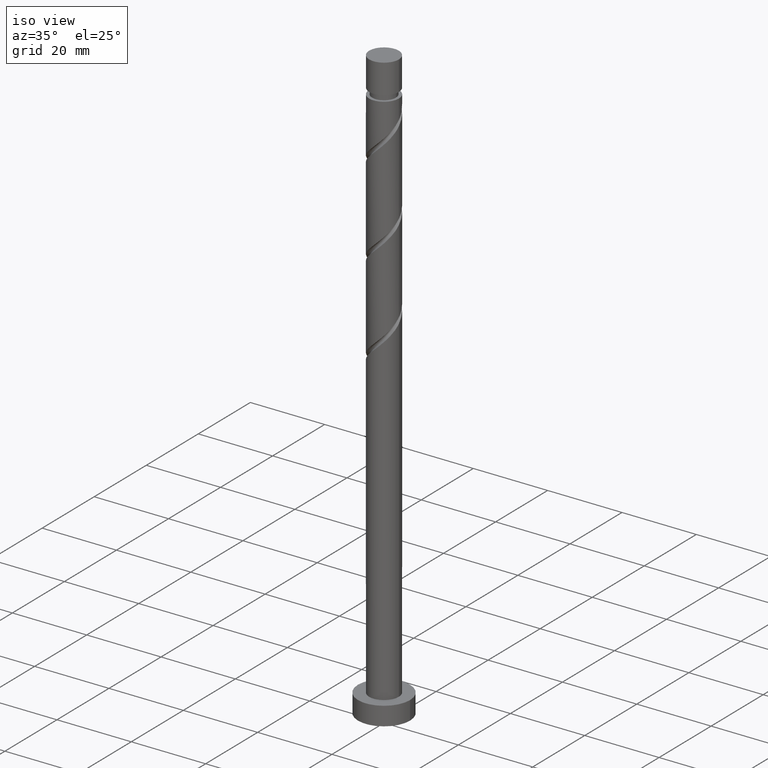
[diagram: clean part render]
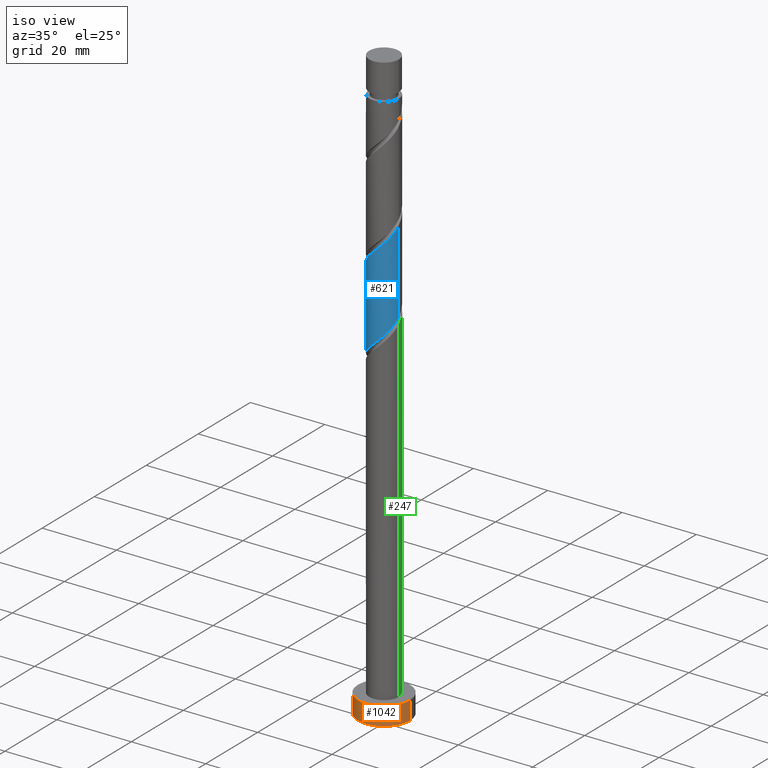
[diagram: same view with three faces highlighted in distinct colors, each labeled with its STEP entity id]
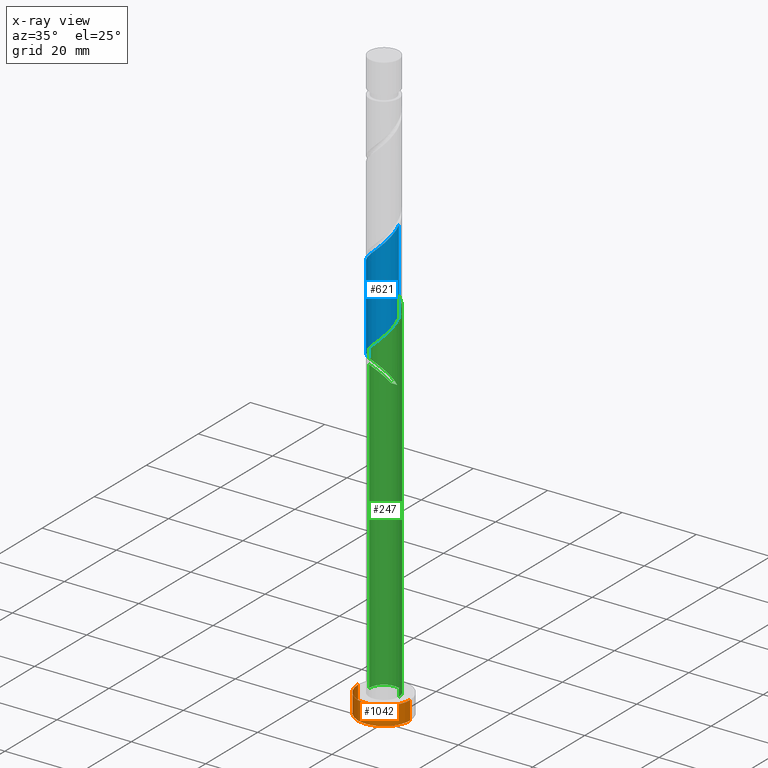
[diagram: x-ray of the same camera — body ghosted, the three highlighted faces saturated]
A machine part, iso view with three faces highlighted in distinct colors.
The next image is the same camera in x-ray (body ghosted, the three faces saturated) — at least one of them is partly hidden behind the body in this view.
Their STEP definitions:

[orange] entity #1042 — the highlighted cylindrical surface (edge-blend (fillet) strip) has radius 7 mm, axis along (-0, -0, -1).
#5 = CARTESIAN_POINT ( 'NONE',  ( -7.000000000000000000, 0.000000000000000000, 5.000000000000000000 ) ) ;
#41 = VERTEX_POINT ( 'NONE', #131 ) ;
#100 = ORIENTED_EDGE ( 'NONE', *, *, #374, .F. ) ;
#131 = CARTESIAN_POINT ( 'NONE',  ( 7.000000000000000000, 8.572527594031473190E-16, 5.000000000000000000 ) ) ;
#141 = DIRECTION ( 'NONE',  ( -0.000000000000000000, -0.000000000000000000, -1.000000000000000000 ) ) ;
#251 = DIRECTION ( 'NONE',  ( -0.000000000000000000, -0.000000000000000000, -1.000000000000000000 ) ) ;
#346 = CIRCLE ( 'NONE', #793, 7.000000000000000000 ) ;
#358 = ORIENTED_EDGE ( 'NONE', *, *, #1585, .F. ) ;
#374 = EDGE_CURVE ( 'NONE', #1170, #41, #1070, .T. ) ;
#381 = DIRECTION ( 'NONE',  ( -1.000000000000000000, 0.000000000000000000, 0.000000000000000000 ) ) ;
#391 = DIRECTION ( 'NONE',  ( 0.000000000000000000, 0.000000000000000000, 1.000000000000000000 ) ) ;
#403 = DIRECTION ( 'NONE',  ( -0.000000000000000000, -0.000000000000000000, -1.000000000000000000 ) ) ;
#452 = CARTESIAN_POINT ( 'NONE',  ( 7.000000000000000000, 8.572527594031473190E-16, 0.000000000000000000 ) ) ;
#472 = EDGE_CURVE ( 'NONE', #563, #623, #346, .T. ) ;
#500 = DIRECTION ( 'NONE',  ( 0.000000000000000000, 0.000000000000000000, 1.000000000000000000 ) ) ;
#546 = VECTOR ( 'NONE', #403, 1000.000000000000000 ) ;
#552 = EDGE_CURVE ( 'NONE', #1170, #563, #670, .T. ) ;
#563 = VERTEX_POINT ( 'NONE', #913 ) ;
#623 = VERTEX_POINT ( 'NONE', #452 ) ;
#670 = LINE ( 'NONE', #5, #1542 ) ;
#733 = AXIS2_PLACEMENT_3D ( 'NONE', #1552, #500, #1026 ) ;
#793 = AXIS2_PLACEMENT_3D ( 'NONE', #1296, #391, #920 ) ;
#842 = ORIENTED_EDGE ( 'NONE', *, *, #472, .T. ) ;
#896 = FACE_OUTER_BOUND ( 'NONE', #1307, .T. ) ;
#913 = CARTESIAN_POINT ( 'NONE',  ( -7.000000000000000000, 0.000000000000000000, 0.000000000000000000 ) ) ;
#920 = DIRECTION ( 'NONE',  ( 1.000000000000000000, 0.000000000000000000, 0.000000000000000000 ) ) ;
#959 = AXIS2_PLACEMENT_3D ( 'NONE', #1169, #251, #381 ) ;
#1026 = DIRECTION ( 'NONE',  ( 1.000000000000000000, 0.000000000000000000, 0.000000000000000000 ) ) ;
#1042 = ADVANCED_FACE ( 'NONE', ( #896 ), #1043, .T. ) ;
#1043 = CYLINDRICAL_SURFACE ( 'NONE', #959, 7.000000000000000000 ) ;
#1070 = CIRCLE ( 'NONE', #733, 7.000000000000000000 ) ;
#1169 = CARTESIAN_POINT ( 'NONE',  ( 0.000000000000000000, 0.000000000000000000, 5.000000000000000000 ) ) ;
#1170 = VERTEX_POINT ( 'NONE', #1533 ) ;
#1189 = CARTESIAN_POINT ( 'NONE',  ( 7.000000000000000000, 8.572527594031473190E-16, 5.000000000000000000 ) ) ;
#1220 = ORIENTED_EDGE ( 'NONE', *, *, #552, .T. ) ;
#1296 = CARTESIAN_POINT ( 'NONE',  ( 0.000000000000000000, 0.000000000000000000, 0.000000000000000000 ) ) ;
#1307 = EDGE_LOOP ( 'NONE', ( #358, #100, #1220, #842 ) ) ;
#1318 = LINE ( 'NONE', #1189, #546 ) ;
#1533 = CARTESIAN_POINT ( 'NONE',  ( -7.000000000000000000, 0.000000000000000000, 5.000000000000000000 ) ) ;
#1542 = VECTOR ( 'NONE', #141, 1000.000000000000000 ) ;
#1552 = CARTESIAN_POINT ( 'NONE',  ( 0.000000000000000000, 0.000000000000000000, 5.000000000000000000 ) ) ;
#1585 = EDGE_CURVE ( 'NONE', #41, #623, #1318, .T. ) ;

[blue] entity #621 — the highlighted cylindrical surface (edge-blend (fillet) strip) has radius 4 mm, axis along (-0, -0, -1).
#7 = CARTESIAN_POINT ( 'NONE',  ( -0.7959899496852971268, -3.919999999999999929, 90.49036384294289803 ) ) ;
#27 = CARTESIAN_POINT ( 'NONE',  ( -4.000000000000000000, 0.000000000000000000, 160.0000000000000000 ) ) ;
#60 = CARTESIAN_POINT ( 'NONE',  ( 4.000000000000005329, 2.557616340297881178E-15, 119.7258548115721339 ) ) ;
#82 = ORIENTED_EDGE ( 'NONE', *, *, #1619, .F. ) ;
#103 = CARTESIAN_POINT ( 'NONE',  ( 3.766394975944548751, -1.464590062224029987, 118.3085456611247395 ) ) ;
#112 = CARTESIAN_POINT ( 'NONE',  ( 1.868138386609204726, -3.536956172823916056, 115.5812729338520057 ) ) ;
#115 = VECTOR ( 'NONE', #168, 1000.000000000000000 ) ;
#121 = CARTESIAN_POINT ( 'NONE',  ( 1.985696539029934149, -3.519625607940456202, 93.21763657021566019 ) ) ;
#129 = CARTESIAN_POINT ( 'NONE',  ( 4.000000000000005329, 2.557616340297881178E-15, 119.7258548115721339 ) ) ;
#168 = DIRECTION ( 'NONE',  ( -0.000000000000000000, -0.000000000000000000, -1.000000000000000000 ) ) ;
#170 = CARTESIAN_POINT ( 'NONE',  ( 0.000000000000000000, 0.000000000000000000, 160.0000000000000000 ) ) ;
#171 = VERTEX_POINT ( 'NONE', #60 ) ;
#177 = CARTESIAN_POINT ( 'NONE',  ( -2.441275768804712420, -3.168623142730450759, 111.2176365702156460 ) ) ;
#250 = CARTESIAN_POINT ( 'NONE',  ( 3.483800894132681236, -1.965485011400590842, 117.7630911156701927 ) ) ;
#279 = LINE ( 'NONE', #27, #115 ) ;
#303 = CARTESIAN_POINT ( 'NONE',  ( -3.235091246491827999, -2.352484777181776288, 110.1267274793065667 ) ) ;
#316 = AXIS2_PLACEMENT_3D ( 'NONE', #170, #569, #582 ) ;
#355 = CARTESIAN_POINT ( 'NONE',  ( 4.000000000000000888, -4.606700776676913527E-15, 97.25487287431371897 ) ) ;
#376 = VERTEX_POINT ( 'NONE', #1525 ) ;
#380 = CARTESIAN_POINT ( 'NONE',  ( -3.201206812320810169, -2.466379960577145702, 87.76309111567022114 ) ) ;
#386 = CARTESIAN_POINT ( 'NONE',  ( 0.9136687552802118528, -3.936491403624601926, 92.12672747930659511 ) ) ;
#442 = VERTEX_POINT ( 'NONE', #355 ) ;
#450 = CARTESIAN_POINT ( 'NONE',  ( -0.9136687552802127410, -3.936491403624608143, 112.8540002065792862 ) ) ;
#488 = CARTESIAN_POINT ( 'NONE',  ( 3.235091246491824002, -2.352484777181773179, 94.85400020657930042 ) ) ;
#495 = CARTESIAN_POINT ( 'NONE',  ( 3.993381233129879693, -0.2300137536889547418, 97.03581838839744478 ) ) ;
#506 = CARTESIAN_POINT ( 'NONE',  ( 3.766818871216632836, -1.345762085751509129, 95.94490929748837971 ) ) ;
#519 = CARTESIAN_POINT ( 'NONE',  ( -2.788941361696812393, -2.867369191613931001, 88.30854566112473947 ) ) ;
#567 = CARTESIAN_POINT ( 'NONE',  ( -4.000000000000005329, -2.752055009443334096E-15, 107.7258548115721197 ) ) ;
#569 = DIRECTION ( 'NONE',  ( -0.000000000000000000, -0.000000000000000000, -1.000000000000000000 ) ) ;
#582 = DIRECTION ( 'NONE',  ( -1.000000000000000000, 0.000000000000000000, 0.000000000000000000 ) ) ;
#617 = CARTESIAN_POINT ( 'NONE',  ( 3.960310248029102365, -0.8041752946599112217, 96.49036384294294066 ) ) ;
#621 = ADVANCED_FACE ( 'NONE', ( #1090 ), #960, .T. ) ;
#626 = CARTESIAN_POINT ( 'NONE',  ( -4.000000000000001776, -0.4581157095404894686, 85.69223683198789843 ) ) ;
#637 = CARTESIAN_POINT ( 'NONE',  ( -4.000000000000000888, 3.769118817281110637E-15, 85.25487287431370476 ) ) ;
#641 = CARTESIAN_POINT ( 'NONE',  ( 1.449682647155072557, -3.728058505782528620, 92.67218202476111344 ) ) ;
#761 = CARTESIAN_POINT ( 'NONE',  ( -3.483800894132676351, -1.965485011400587068, 87.21763657021564597 ) ) ;
#779 = CARTESIAN_POINT ( 'NONE',  ( -1.359600862145591949, -3.805553922997103822, 89.94490929748835129 ) ) ;
#785 = CARTESIAN_POINT ( 'NONE',  ( 4.000000000000000000, 4.898587196589412829E-16, 160.0000000000000000 ) ) ;
#905 = CARTESIAN_POINT ( 'NONE',  ( 3.896423597087605994, -0.9043689247530174447, 118.8540002065793146 ) ) ;
#915 = CARTESIAN_POINT ( 'NONE',  ( 1.359600862145592615, -3.805553922997109595, 115.0358183883974874 ) ) ;
#919 =( BOUNDED_CURVE ( )  B_SPLINE_CURVE ( 2, ( #1642, #1510, #495, #617, #506, #1652, #488, #1520, #1414, #121, #641, #386, #1423, #1175, #7, #779, #1398, #1538, #519, #380, #761, #1030, #1047, #626, #1167 ),
 .UNSPECIFIED., .F., .T. ) 
 B_SPLINE_CURVE_WITH_KNOTS ( ( 3, 2, 2, 2, 2, 2, 2, 2, 2, 2, 2, 2, 3 ),
 ( 0.8045252162417513286, 0.8068181818181817677, 0.8181818181818182323, 0.8295454545454545858, 0.8409090909090909394, 0.8522727272727272929, 0.8636363636363636465, 0.8750000000000000000, 0.8863636363636363535, 0.8977272727272727071, 0.9090909090909090606, 0.9204545454545454142, 0.9295252162417513286 ),
 .UNSPECIFIED. ) 
 CURVE ( )  GEOMETRIC_REPRESENTATION_ITEM ( )  RATIONAL_B_SPLINE_CURVE ( ( 0.9061101570135567940, 0.9072237824201390133, 0.9090909090909164991, 0.8998376744372188485, 0.9090909090909164991, 0.8998376744372188485, 0.9090909090909164991, 0.8998376744372188485, 0.9090909090909164991, 0.8998376744372188485, 0.9090909090909164991, 0.8998376744372188485, 0.9090909090909164991, 0.8998376744372188485, 0.9090909090909164991, 0.8998376744372188485, 0.9090909090909164991, 0.8998376744372188485, 0.9090909090909164991, 0.8998376744372188485, 0.9090909090909164991, 0.8998376744372188485, 0.9090909090909164991, 0.9017048011079962233, 0.9061101570135567940 ) ) 
 REPRESENTATION_ITEM ( '' )  );
#930 = DIRECTION ( 'NONE',  ( -0.000000000000000000, -0.000000000000000000, -1.000000000000000000 ) ) ;
#960 = CYLINDRICAL_SURFACE ( 'NONE', #316, 4.000000000000000000 ) ;
#961 = ORIENTED_EDGE ( 'NONE', *, *, #1205, .T. ) ;
#973 = CARTESIAN_POINT ( 'NONE',  ( -0.3406448590276058841, -3.985468740313755642, 113.3994547520338330 ) ) ;
#1011 = CARTESIAN_POINT ( 'NONE',  ( 3.201206812320812833, -2.466379960577149699, 117.2176365702156460 ) ) ;
#1021 = CARTESIAN_POINT ( 'NONE',  ( 2.788941361696814614, -2.867369191613936330, 116.6721820247610992 ) ) ;
#1030 = CARTESIAN_POINT ( 'NONE',  ( -3.766394975944543422, -1.464590062224028433, 86.67218202476112765 ) ) ;
#1047 = CARTESIAN_POINT ( 'NONE',  ( -3.896423597087600665, -0.9043689247530153352, 86.12672747930656669 ) ) ;
#1090 = FACE_OUTER_BOUND ( 'NONE', #1358, .T. ) ;
#1098 = CARTESIAN_POINT ( 'NONE',  ( -4.000000000000005329, -0.1151021060952966968, 107.8357430158185224 ) ) ;
#1107 = VERTEX_POINT ( 'NONE', #637 ) ;
#1147 = CARTESIAN_POINT ( 'NONE',  ( 0.7959899496852965717, -3.920000000000005702, 114.4903638429429407 ) ) ;
#1167 = CARTESIAN_POINT ( 'NONE',  ( -4.000000000000000888, 3.769118817281110637E-15, 85.25487287431370476 ) ) ;
#1175 = CARTESIAN_POINT ( 'NONE',  ( -0.2323790372250022218, -4.034446077002896480, 91.03581838839745899 ) ) ;
#1181 = ORIENTED_EDGE ( 'NONE', *, *, #1446, .F. ) ;
#1205 = EDGE_CURVE ( 'NONE', #376, #1107, #279, .T. ) ;
#1225 = CARTESIAN_POINT ( 'NONE',  ( -1.985696539029938146, -3.519625607940459311, 111.7630911156702069 ) ) ;
#1245 = CARTESIAN_POINT ( 'NONE',  ( -3.993381233129885466, -0.2300137536889534373, 107.9449092974883797 ) ) ;
#1288 = CARTESIAN_POINT ( 'NONE',  ( 4.000000000000008882, -0.4581157095404853608, 119.2884908538979971 ) ) ;
#1294 = CARTESIAN_POINT ( 'NONE',  ( 2.376675911072817282, -3.268358422650720740, 116.1267274793065667 ) ) ;
#1310 = ORIENTED_EDGE ( 'NONE', *, *, #1466, .F. ) ;
#1349 = CARTESIAN_POINT ( 'NONE',  ( -2.896854998579486917, -2.817620677520442651, 110.6721820247611134 ) ) ;
#1358 = EDGE_LOOP ( 'NONE', ( #82, #1181, #961, #1310 ) ) ;
#1398 = CARTESIAN_POINT ( 'NONE',  ( -1.868138386609203616, -3.536956172823910727, 89.39945475203383296 ) ) ;
#1414 = CARTESIAN_POINT ( 'NONE',  ( 2.441275768804707980, -3.168623142730448095, 93.76309111567019272 ) ) ;
#1423 = CARTESIAN_POINT ( 'NONE',  ( 0.3406448590276037192, -3.985468740313750313, 91.58127293385200574 ) ) ;
#1446 = EDGE_CURVE ( 'NONE', #376, #171, #1603, .T. ) ;
#1457 = LINE ( 'NONE', #785, #1645 ) ;
#1466 = EDGE_CURVE ( 'NONE', #442, #1107, #919, .T. ) ;
#1468 = CARTESIAN_POINT ( 'NONE',  ( -3.573327494404169524, -1.887348876843109702, 109.5812729338520199 ) ) ;
#1475 = CARTESIAN_POINT ( 'NONE',  ( 0.2323790372250007230, -4.034446077002900921, 113.9449092974883513 ) ) ;
#1503 = CARTESIAN_POINT ( 'NONE',  ( -3.960310248029106805, -0.8041752946599106666, 108.4903638429429122 ) ) ;
#1510 = CARTESIAN_POINT ( 'NONE',  ( 4.000000000000000888, -0.1151021060952927416, 97.14498467006733051 ) ) ;
#1520 = CARTESIAN_POINT ( 'NONE',  ( 2.896854998579484253, -2.817620677520439987, 94.30854566112473947 ) ) ;
#1525 = CARTESIAN_POINT ( 'NONE',  ( -4.000000000000005329, -2.752055009443334096E-15, 107.7258548115721197 ) ) ;
#1538 = CARTESIAN_POINT ( 'NONE',  ( -2.376675911072814618, -3.268358422650716744, 88.85400020657930042 ) ) ;
#1591 = CARTESIAN_POINT ( 'NONE',  ( -3.766818871216639053, -1.345762085751509796, 109.0358183883974732 ) ) ;
#1602 = CARTESIAN_POINT ( 'NONE',  ( -1.449682647155075665, -3.728058505782533505, 112.3085456611247537 ) ) ;
#1603 =( BOUNDED_CURVE ( )  B_SPLINE_CURVE ( 2, ( #567, #1098, #1245, #1503, #1591, #1468, #303, #1349, #177, #1225, #1602, #450, #973, #1475, #1147, #915, #112, #1294, #1021, #1011, #250, #103, #905, #1288, #129 ),
 .UNSPECIFIED., .F., .T. ) 
 B_SPLINE_CURVE_WITH_KNOTS ( ( 3, 2, 2, 2, 2, 2, 2, 2, 2, 2, 2, 2, 3 ),
 ( 0.3045252162417514397, 0.3068181818181817677, 0.3181818181818182323, 0.3295454545454545858, 0.3409090909090909394, 0.3522727272727272929, 0.3636363636363636465, 0.3750000000000000000, 0.3863636363636363535, 0.3977272727272727071, 0.4090909090909090606, 0.4204545454545454142, 0.4295252162417514397 ),
 .UNSPECIFIED. ) 
 CURVE ( )  GEOMETRIC_REPRESENTATION_ITEM ( )  RATIONAL_B_SPLINE_CURVE ( ( 0.9061101570135624561, 0.9072237824201445644, 0.9090909090909219392, 0.8998376744372241776, 0.9090909090909219392, 0.8998376744372241776, 0.9090909090909219392, 0.8998376744372241776, 0.9090909090909219392, 0.8998376744372241776, 0.9090909090909219392, 0.8998376744372241776, 0.9090909090909219392, 0.8998376744372241776, 0.9090909090909219392, 0.8998376744372241776, 0.9090909090909219392, 0.8998376744372241776, 0.9090909090909219392, 0.8998376744372241776, 0.9090909090909219392, 0.8998376744372241776, 0.9090909090909219392, 0.9017048011080015524, 0.9061101570135624561 ) ) 
 REPRESENTATION_ITEM ( '' )  );
#1619 = EDGE_CURVE ( 'NONE', #171, #442, #1457, .T. ) ;
#1642 = CARTESIAN_POINT ( 'NONE',  ( 4.000000000000000888, -4.606700776676913527E-15, 97.25487287431371897 ) ) ;
#1645 = VECTOR ( 'NONE', #930, 1000.000000000000000 ) ;
#1652 = CARTESIAN_POINT ( 'NONE',  ( 3.573327494404164639, -1.887348876843107703, 95.39945475203384717 ) ) ;

[green] entity #247 — the highlighted cylindrical surface (edge-blend (fillet) strip) has radius 4 mm, axis along (-0, -0, -1).
#4 = CARTESIAN_POINT ( 'NONE',  ( -4.000000000000005329, -2.752055009443334096E-15, 107.7258548115721197 ) ) ;
#10 = LINE ( 'NONE', #1185, #408 ) ;
#14 = CARTESIAN_POINT ( 'NONE',  ( -1.868138386609205837, 3.536956172823915612, 79.58127293385203416 ) ) ;
#21 = CARTESIAN_POINT ( 'NONE',  ( -3.483800894132681236, 1.965485011400590398, 81.76309111567019272 ) ) ;
#22 = DIRECTION ( 'NONE',  ( 0.000000000000000000, -0.000000000000000000, -1.000000000000000000 ) ) ;
#27 = CARTESIAN_POINT ( 'NONE',  ( -4.000000000000000000, 0.000000000000000000, 160.0000000000000000 ) ) ;
#31 = CARTESIAN_POINT ( 'NONE',  ( -4.000000000000005329, -2.752055009443334096E-15, 83.72585481157213394 ) ) ;
#34 = CIRCLE ( 'NONE', #244, 4.000000000000000000 ) ;
#45 = EDGE_CURVE ( 'NONE', #776, #376, #444, .T. ) ;
#84 = CARTESIAN_POINT ( 'NONE',  ( 0.000000000000000000, 0.000000000000000000, 160.0000000000000000 ) ) ;
#86 = AXIS2_PLACEMENT_3D ( 'NONE', #789, #22, #890 ) ;
#115 = VECTOR ( 'NONE', #168, 1000.000000000000000 ) ;
#128 = CARTESIAN_POINT ( 'NONE',  ( -4.000000000000008882, 0.4581157095404854718, 107.2884908538979687 ) ) ;
#150 =( BOUNDED_CURVE ( )  B_SPLINE_CURVE ( 2, ( #231, #1419, #14, #1426, #743, #539, #21, #1321, #1065, #533, #928 ),
 .UNSPECIFIED., .F., .T. ) 
 B_SPLINE_CURVE_WITH_KNOTS ( ( 3, 2, 2, 2, 2, 3 ),
 ( 0.000000000000000000, 0.01136363636363635354, 0.02272727272727270709, 0.03409090909090906063, 0.04545454545454541417, 0.05452521624175133558 ),
 .UNSPECIFIED. ) 
 CURVE ( )  GEOMETRIC_REPRESENTATION_ITEM ( )  RATIONAL_B_SPLINE_CURVE ( ( 0.9090909090909219392, 0.8998376744372241776, 0.9090909090909219392, 0.8998376744372241776, 0.9090909090909219392, 0.8998376744372241776, 0.9090909090909219392, 0.8998376744372241776, 0.9090909090909219392, 0.9017048011080016634, 0.9061101570135623451 ) ) 
 REPRESENTATION_ITEM ( '' )  );
#168 = DIRECTION ( 'NONE',  ( -0.000000000000000000, -0.000000000000000000, -1.000000000000000000 ) ) ;
#185 = CARTESIAN_POINT ( 'NONE',  ( 4.000000000000000000, 4.898587196589412829E-16, 160.0000000000000000 ) ) ;
#191 = EDGE_CURVE ( 'NONE', #1421, #975, #34, .T. ) ;
#205 = DIRECTION ( 'NONE',  ( -1.000000000000000000, 0.000000000000000000, 0.000000000000000000 ) ) ;
#231 = CARTESIAN_POINT ( 'NONE',  ( -0.7959899496852960166, 3.920000000000004370, 78.49036384294292645 ) ) ;
#240 = CARTESIAN_POINT ( 'NONE',  ( 0.3406448590276063282, 3.985468740313755642, 101.3994547520338472 ) ) ;
#244 = AXIS2_PLACEMENT_3D ( 'NONE', #1102, #855, #1368 ) ;
#247 = ADVANCED_FACE ( 'NONE', ( #1598 ), #1007, .T. ) ;
#249 = CARTESIAN_POINT ( 'NONE',  ( 1.449682647155074333, 3.728058505782534393, 100.3085456611247679 ) ) ;
#264 = CARTESIAN_POINT ( 'NONE',  ( 1.985696539029936369, 3.519625607940460643, 99.76309111567022114 ) ) ;
#279 = LINE ( 'NONE', #27, #115 ) ;
#334 = EDGE_CURVE ( 'NONE', #1107, #1100, #971, .T. ) ;
#347 = ORIENTED_EDGE ( 'NONE', *, *, #1205, .F. ) ;
#376 = VERTEX_POINT ( 'NONE', #1525 ) ;
#378 = CARTESIAN_POINT ( 'NONE',  ( -2.376675911072817282, 3.268358422650721629, 104.1267274793065525 ) ) ;
#394 = CARTESIAN_POINT ( 'NONE',  ( 3.573327494404170412, 1.887348876843108370, 97.58127293385197731 ) ) ;
#408 = VECTOR ( 'NONE', #1424, 1000.000000000000000 ) ;
#444 =( BOUNDED_CURVE ( )  B_SPLINE_CURVE ( 2, ( #1649, #1554, #892, #633, #502, #394, #1517, #921, #1396, #264, #249, #791, #240, #1164, #1660, #514, #1537, #378, #904, #1411, #778, #1173, #1292, #128, #4 ),
 .UNSPECIFIED., .F., .T. ) 
 B_SPLINE_CURVE_WITH_KNOTS ( ( 3, 2, 2, 2, 2, 2, 2, 2, 2, 2, 2, 2, 3 ),
 ( 0.1795252162417513841, 0.1818181818181817677, 0.1931818181818182323, 0.2045454545454545858, 0.2159090909090909394, 0.2272727272727272929, 0.2386363636363636465, 0.2500000000000000000, 0.2613636363636363535, 0.2727272727272727071, 0.2840909090909090606, 0.2954545454545454142, 0.3045252162417514397 ),
 .UNSPECIFIED. ) 
 CURVE ( )  GEOMETRIC_REPRESENTATION_ITEM ( )  RATIONAL_B_SPLINE_CURVE ( ( 0.9061101570135623451, 0.9072237824201445644, 0.9090909090909219392, 0.8998376744372241776, 0.9090909090909219392, 0.8998376744372241776, 0.9090909090909219392, 0.8998376744372241776, 0.9090909090909219392, 0.8998376744372241776, 0.9090909090909219392, 0.8998376744372241776, 0.9090909090909219392, 0.8998376744372241776, 0.9090909090909219392, 0.8998376744372241776, 0.9090909090909219392, 0.8998376744372241776, 0.9090909090909219392, 0.8998376744372241776, 0.9090909090909219392, 0.8998376744372241776, 0.9090909090909219392, 0.9017048011080015524, 0.9061101570135624561 ) ) 
 REPRESENTATION_ITEM ( '' )  );
#464 = CARTESIAN_POINT ( 'NONE',  ( -3.993381233129879693, 0.2300137536889541867, 85.03581838839744478 ) ) ;
#476 = CARTESIAN_POINT ( 'NONE',  ( -4.000000000000000888, 3.769118817281110637E-15, 85.25487287431370476 ) ) ;
#502 = CARTESIAN_POINT ( 'NONE',  ( 3.766818871216639053, 1.345762085751509574, 97.03581838839745899 ) ) ;
#514 = CARTESIAN_POINT ( 'NONE',  ( -1.359600862145593503, 3.805553922997108707, 103.0358183883974874 ) ) ;
#523 = EDGE_CURVE ( 'NONE', #639, #1630, #150, .T. ) ;
#533 = CARTESIAN_POINT ( 'NONE',  ( -4.000000000000007105, 0.4581157095404903012, 83.28849085389795448 ) ) ;
#539 = CARTESIAN_POINT ( 'NONE',  ( -3.201206812320813277, 2.466379960577148367, 81.21763657021567440 ) ) ;
#572 = ORIENTED_EDGE ( 'NONE', *, *, #699, .T. ) ;
#575 = CARTESIAN_POINT ( 'NONE',  ( -3.573327494404164639, 1.887348876843108147, 83.39945475203383296 ) ) ;
#586 = CARTESIAN_POINT ( 'NONE',  ( -3.235091246491823558, 2.352484777181774511, 82.85400020657928621 ) ) ;
#593 = CARTESIAN_POINT ( 'NONE',  ( -4.000000000000000888, 0.1151021060952919922, 85.14498467006733051 ) ) ;
#615 = ORIENTED_EDGE ( 'NONE', *, *, #1057, .F. ) ;
#619 = CARTESIAN_POINT ( 'NONE',  ( -4.000000000000000000, 0.000000000000000000, 5.000000000000000000 ) ) ;
#633 = CARTESIAN_POINT ( 'NONE',  ( 3.960310248029106805, 0.8041752946599101115, 96.49036384294291224 ) ) ;
#637 = CARTESIAN_POINT ( 'NONE',  ( -4.000000000000000888, 3.769118817281110637E-15, 85.25487287431370476 ) ) ;
#639 = VERTEX_POINT ( 'NONE', #1595 ) ;
#692 = ORIENTED_EDGE ( 'NONE', *, *, #852, .T. ) ;
#699 = EDGE_CURVE ( 'NONE', #639, #1100, #700, .T. ) ;
#700 = CIRCLE ( 'NONE', #86, 4.000000000000000000 ) ;
#705 = CARTESIAN_POINT ( 'NONE',  ( -1.985696539029934815, 3.519625607940455758, 81.21763657021564597 ) ) ;
#706 = DIRECTION ( 'NONE',  ( -0.000000000000000000, -0.000000000000000000, -1.000000000000000000 ) ) ;
#714 = CARTESIAN_POINT ( 'NONE',  ( 0.7959899496852974599, 3.919999999999999929, 78.49036384294292645 ) ) ;
#743 = CARTESIAN_POINT ( 'NONE',  ( -2.788941361696814614, 2.867369191613936330, 80.67218202476112765 ) ) ;
#776 = VERTEX_POINT ( 'NONE', #782 ) ;
#778 = CARTESIAN_POINT ( 'NONE',  ( -3.483800894132681236, 1.965485011400590398, 105.7630911156701927 ) ) ;
#782 = CARTESIAN_POINT ( 'NONE',  ( 4.000000000000005329, 2.557616340297881178E-15, 95.72585481157214815 ) ) ;
#789 = CARTESIAN_POINT ( 'NONE',  ( 0.000000000000000000, 0.000000000000000000, 78.49036384294292645 ) ) ;
#791 = CARTESIAN_POINT ( 'NONE',  ( 0.9136687552802131851, 3.936491403624606811, 100.8540002065792720 ) ) ;
#852 = EDGE_CURVE ( 'NONE', #776, #1421, #969, .T. ) ;
#855 = DIRECTION ( 'NONE',  ( 0.000000000000000000, 0.000000000000000000, 1.000000000000000000 ) ) ;
#865 = CARTESIAN_POINT ( 'NONE',  ( -3.766818871216632836, 1.345762085751508463, 83.94490929748839392 ) ) ;
#890 = DIRECTION ( 'NONE',  ( -1.000000000000000000, 0.000000000000000000, 0.000000000000000000 ) ) ;
#892 = CARTESIAN_POINT ( 'NONE',  ( 3.993381233129885466, 0.2300137536889530487, 95.94490929748839392 ) ) ;
#904 = CARTESIAN_POINT ( 'NONE',  ( -2.788941361696814614, 2.867369191613936330, 104.6721820247611134 ) ) ;
#921 = CARTESIAN_POINT ( 'NONE',  ( 2.896854998579489138, 2.817620677520440875, 98.67218202476108502 ) ) ;
#928 = CARTESIAN_POINT ( 'NONE',  ( -4.000000000000005329, -2.752055009443334096E-15, 83.72585481157213394 ) ) ;
#969 = LINE ( 'NONE', #185, #984 ) ;
#971 =( BOUNDED_CURVE ( )  B_SPLINE_CURVE ( 2, ( #476, #593, #464, #1222, #865, #575, #586, #1377, #1614, #705, #1117, #1232, #1109, #998, #714 ),
 .UNSPECIFIED., .F., .T. ) 
 B_SPLINE_CURVE_WITH_KNOTS ( ( 3, 2, 2, 2, 2, 2, 2, 3 ),
 ( 0.9295252162417513286, 0.9318181818181817677, 0.9431818181818182323, 0.9545454545454545858, 0.9659090909090909394, 0.9772727272727272929, 0.9886363636363636465, 1.000000000000000000 ),
 .UNSPECIFIED. ) 
 CURVE ( )  GEOMETRIC_REPRESENTATION_ITEM ( )  RATIONAL_B_SPLINE_CURVE ( ( 0.9061101570135567940, 0.9072237824201390133, 0.9090909090909164991, 0.8998376744372188485, 0.9090909090909164991, 0.8998376744372188485, 0.9090909090909164991, 0.8998376744372188485, 0.9090909090909164991, 0.8998376744372188485, 0.9090909090909164991, 0.8998376744372188485, 0.9090909090909164991, 0.8998376744372188485, 0.9090909090909164991 ) ) 
 REPRESENTATION_ITEM ( '' )  );
#975 = VERTEX_POINT ( 'NONE', #619 ) ;
#984 = VECTOR ( 'NONE', #706, 1000.000000000000000 ) ;
#998 = CARTESIAN_POINT ( 'NONE',  ( 0.2323790372250010838, 4.034446077002895592, 79.03581838839747320 ) ) ;
#1007 = CYLINDRICAL_SURFACE ( 'NONE', #1179, 4.000000000000000000 ) ;
#1039 = ORIENTED_EDGE ( 'NONE', *, *, #191, .T. ) ;
#1057 = EDGE_CURVE ( 'NONE', #1630, #975, #10, .T. ) ;
#1065 = CARTESIAN_POINT ( 'NONE',  ( -3.896423597087605994, 0.9043689247530175557, 82.85400020657930042 ) ) ;
#1100 = VERTEX_POINT ( 'NONE', #1523 ) ;
#1102 = CARTESIAN_POINT ( 'NONE',  ( 0.000000000000000000, 0.000000000000000000, 5.000000000000000000 ) ) ;
#1107 = VERTEX_POINT ( 'NONE', #637 ) ;
#1109 = CARTESIAN_POINT ( 'NONE',  ( -0.3406448590276049404, 3.985468740313750313, 79.58127293385203416 ) ) ;
#1117 = CARTESIAN_POINT ( 'NONE',  ( -1.449682647155072557, 3.728058505782528620, 80.67218202476109923 ) ) ;
#1122 = ORIENTED_EDGE ( 'NONE', *, *, #334, .F. ) ;
#1164 = CARTESIAN_POINT ( 'NONE',  ( -0.2323790372250002234, 4.034446077002900921, 101.9449092974883939 ) ) ;
#1173 = CARTESIAN_POINT ( 'NONE',  ( -3.766394975944548307, 1.464590062224031541, 106.3085456611247395 ) ) ;
#1179 = AXIS2_PLACEMENT_3D ( 'NONE', #84, #1241, #205 ) ;
#1185 = CARTESIAN_POINT ( 'NONE',  ( -4.000000000000000000, 0.000000000000000000, 160.0000000000000000 ) ) ;
#1205 = EDGE_CURVE ( 'NONE', #376, #1107, #279, .T. ) ;
#1222 = CARTESIAN_POINT ( 'NONE',  ( -3.960310248029102365, 0.8041752946599105556, 84.49036384294295488 ) ) ;
#1232 = CARTESIAN_POINT ( 'NONE',  ( -0.9136687552802111867, 3.936491403624602814, 80.12672747930659511 ) ) ;
#1241 = DIRECTION ( 'NONE',  ( -0.000000000000000000, -0.000000000000000000, -1.000000000000000000 ) ) ;
#1292 = CARTESIAN_POINT ( 'NONE',  ( -3.896423597087605994, 0.9043689247530175557, 106.8540002065793146 ) ) ;
#1321 = CARTESIAN_POINT ( 'NONE',  ( -3.766394975944548307, 1.464590062224031541, 82.30854566112473947 ) ) ;
#1366 = ORIENTED_EDGE ( 'NONE', *, *, #45, .F. ) ;
#1368 = DIRECTION ( 'NONE',  ( 1.000000000000000000, 0.000000000000000000, 0.000000000000000000 ) ) ;
#1377 = CARTESIAN_POINT ( 'NONE',  ( -2.896854998579482920, 2.817620677520439987, 82.30854566112475368 ) ) ;
#1396 = CARTESIAN_POINT ( 'NONE',  ( 2.441275768804711976, 3.168623142730452091, 99.21763657021566019 ) ) ;
#1411 = CARTESIAN_POINT ( 'NONE',  ( -3.201206812320813277, 2.466379960577148367, 105.2176365702156460 ) ) ;
#1419 = CARTESIAN_POINT ( 'NONE',  ( -1.359600862145593503, 3.805553922997108707, 79.03581838839747320 ) ) ;
#1421 = VERTEX_POINT ( 'NONE', #1485 ) ;
#1424 = DIRECTION ( 'NONE',  ( -0.000000000000000000, -0.000000000000000000, -1.000000000000000000 ) ) ;
#1426 = CARTESIAN_POINT ( 'NONE',  ( -2.376675911072817282, 3.268358422650721629, 80.12672747930656669 ) ) ;
#1485 = CARTESIAN_POINT ( 'NONE',  ( 4.000000000000000000, 4.898587196589412829E-16, 5.000000000000000000 ) ) ;
#1515 = EDGE_LOOP ( 'NONE', ( #1366, #692, #1039, #615, #1526, #572, #1122, #347 ) ) ;
#1517 = CARTESIAN_POINT ( 'NONE',  ( 3.235091246491828887, 2.352484777181775399, 98.12672747930653827 ) ) ;
#1523 = CARTESIAN_POINT ( 'NONE',  ( 0.7959899496852974599, 3.919999999999999929, 78.49036384294292645 ) ) ;
#1525 = CARTESIAN_POINT ( 'NONE',  ( -4.000000000000005329, -2.752055009443334096E-15, 107.7258548115721197 ) ) ;
#1526 = ORIENTED_EDGE ( 'NONE', *, *, #523, .F. ) ;
#1537 = CARTESIAN_POINT ( 'NONE',  ( -1.868138386609205837, 3.536956172823915612, 103.5812729338520199 ) ) ;
#1554 = CARTESIAN_POINT ( 'NONE',  ( 4.000000000000005329, 0.1151021060952936159, 95.83574301581853661 ) ) ;
#1595 = CARTESIAN_POINT ( 'NONE',  ( -0.7959899496852960166, 3.920000000000004370, 78.49036384294292645 ) ) ;
#1598 = FACE_OUTER_BOUND ( 'NONE', #1515, .T. ) ;
#1614 = CARTESIAN_POINT ( 'NONE',  ( -2.441275768804708868, 3.168623142730448095, 81.76309111567019272 ) ) ;
#1630 = VERTEX_POINT ( 'NONE', #31 ) ;
#1649 = CARTESIAN_POINT ( 'NONE',  ( 4.000000000000005329, 2.557616340297881178E-15, 95.72585481157214815 ) ) ;
#1660 = CARTESIAN_POINT ( 'NONE',  ( -0.7959899496852962386, 3.920000000000005702, 102.4903638429429407 ) ) ;